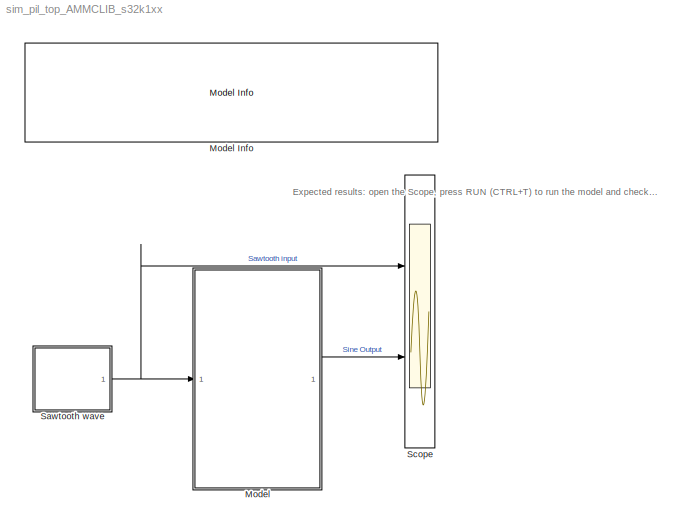
MODEL sim_pil_top_AMMCLIB_s32k1xx
KIND model
CONFIG InitFcn = mbd_s32k_consistency_checks(bdroot(gcs));
BLOCK [ModelReference] Model
  ModelNameDialog = sim_pil_target_AMMCLIB_s32k1xx.mdl
  ModelReferenceVersion = 1.100
  Ports = [1, 1]
  SID = 5
  Variant = off
BLOCK [Reference] Model Info  REF=simulink/Model-Wide\nUtilities/Model Info
  DisplayStringWithTags = Model Name: %<ModelName>\n\nDescription: %<Description>
  Frame = off
  HorizontalTextAlignment = Left
  LeftAlignmentValue = 0.02
  MaskDisplayString = Model Name: sim_pil_top_AMMCLIB_s32k1xx\\n\\nDescription: Bit accurate model of GFLIB_Sin function, \\nwhich computes the sin(f16In) using the 7th order Taylor polynomial approximation\\n\\nInput: a sawtooth signal representing the angle [-32768...32767] range\\n\\nOutput: sine value [-32768...32767] range
  Ports = []
  SID = 6
  SourceBlock = simulink/Model-Wide\nUtilities/Model Info
  SourceProductBaseCode = SL
  SourceProductName = Simulink
  SourceType = CMBlock
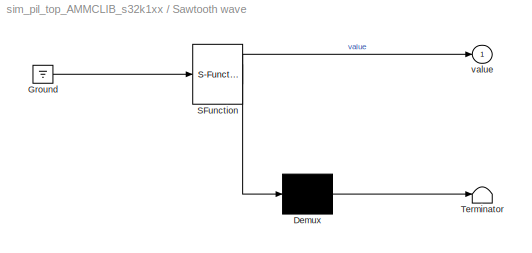
BLOCK [SubSystem] Sawtooth wave
  ErrorFcn = Stateflow.Translate.translate
  PermitHierarchicalResolution = ExplicitOnly
  Ports = [0, 1]
  RequestExecContextInheritance = off
  SFBlockType = Chart
  SID = 2
  TreatAsAtomicUnit = on
  Variant = off
BLOCK [Demux] Sawtooth wave/ Demux 
  Outputs = 1
  Ports = [1, 1]
  SID = 2::43
BLOCK [Ground] Sawtooth wave/ Ground 
  SID = 2::45
BLOCK [S-Function] Sawtooth wave/ SFunction 
  EnableBusSupport = off
  FunctionName = sf_sfun
  PortCounts = [1 2]
  Ports = [1, 2]
  SFcnIsStateOwnerBlock = off
  SFunctionDeploymentMode = off
  SID = 2::42
  Tag = Stateflow S-Function sim_pil_top_AMMCLIB_s32k1xx 5
BLOCK [Terminator] Sawtooth wave/ Terminator 
  SID = 2::44
BLOCK [Outport] Sawtooth wave/value
  IconDisplay = Port number
  SID = 2::5
BLOCK [Scope] Scope
  NumInputPorts = 2
  Ports = [2]
  SID = 3
  ScopeSpecificationString = Simulink.scopes.TimeScopeBlockCfg('CurrentConfiguration', extmgr.ConfigurationSet(extmgr.Configuration('Core','General UI',true),extmgr.Configuration('Core','Source UI',true),extmgr.Configuration('Sources','WiredSimulink',true,'DataLoggingSaveFormat','StructureWithTime','DataLoggingLimitDataPoints',true,'DataLoggingDecimation','1','DataLoggingDecimateData',true),extmgr.Configuration('Visuals','Tim...<+1898ch>
ANNOTATION (root): \n \n Expected results: open the Scope, press RUN (CTRL+T) to run the model and check if the signals are the same with these ones \n
LINE Model:1 -> Scope:2
LINE Sawtooth wave/ Demux :1 -> Sawtooth wave/ Terminator :1
LINE Sawtooth wave/ Ground :1 -> Sawtooth wave/ SFunction :1
LINE Sawtooth wave/ SFunction :1 -> Sawtooth wave/ Demux :1
LINE Sawtooth wave/ SFunction :2 -> Sawtooth wave/value:1
NET Sawtooth wave:1 -> Model:1, Scope:1
note: NET lines group one-source signal fan-out (src -> all destinations, sorted); 1:1 wires keep LINE
CHART Sawtooth wave states=1 transitions=2
  STATE_LABEL 'A\\ndu:\\n cntr=cntr+100;\\n value=cntr;\\nex:\\n cntr = -32700;'
